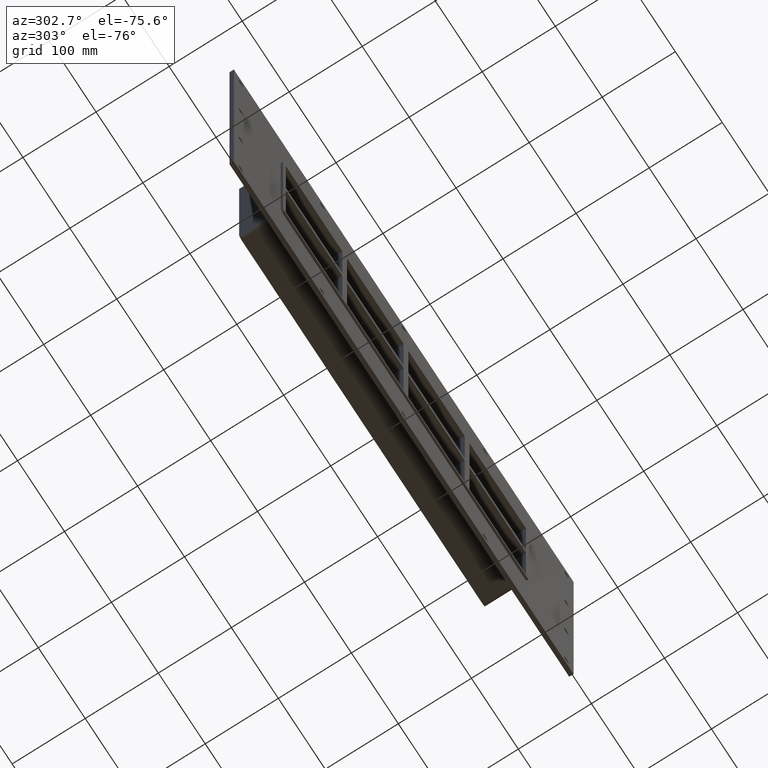
[diagram: clean part render]
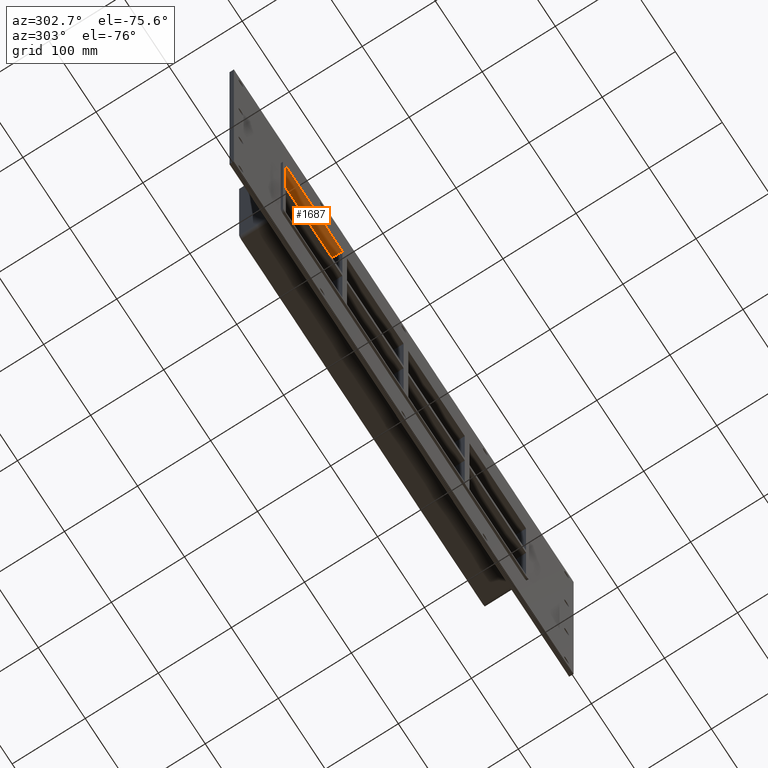
[diagram: same view with one face highlighted and labeled with its STEP entity id]
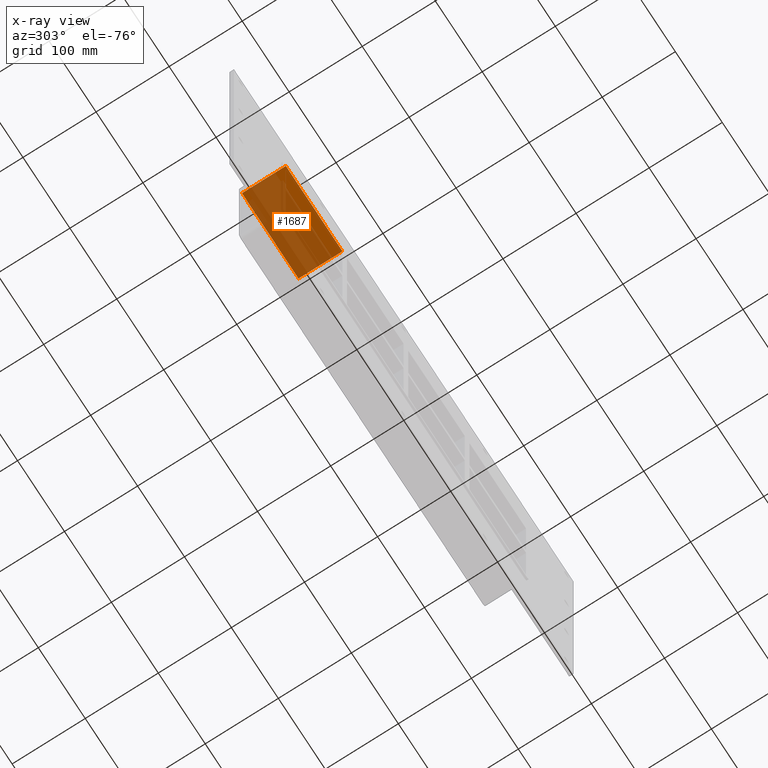
[diagram: x-ray of the same camera — body ghosted, the highlighted face saturated]
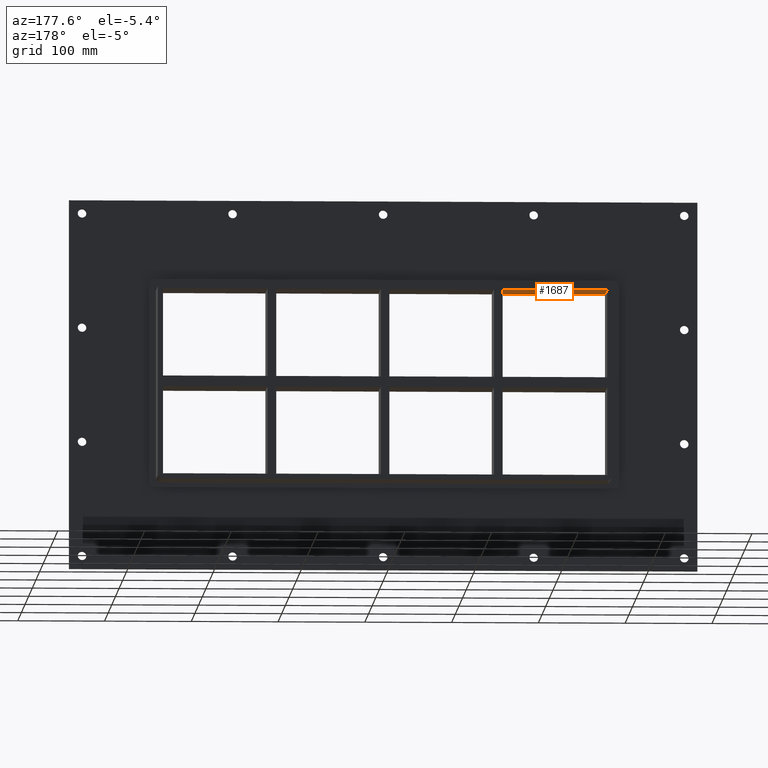
[diagram: same view with one face highlighted and labeled with its STEP entity id]
A machine part, auxiliary view. The second image highlights one B-rep face of the part: STEP entity #1687.
The next image is the same camera in x-ray: the body ghosted, the highlighted face saturated — about 76% of this face is hidden behind the body in this view.
A second angle (auxiliary view) of the same face is appended — the face is thin or edge-on in the first view.
In plain terms, the highlighted planar face has unit normal (0, 0, 1).
Its self-contained STEP definition (entity closure, byte-faithful):
#1054=CARTESIAN_POINT('',(-256.00000000000006,-3.0,107.0));
#1055=VERTEX_POINT('',#1054);
#1062=CARTESIAN_POINT('',(-135.50000000000142,-3.0,107.0));
#1063=VERTEX_POINT('',#1062);
#1064=CARTESIAN_POINT('',(-256.00000000000006,-3.0,107.0));
#1065=DIRECTION('',(1.0,0.0,0.0));
#1066=VECTOR('',#1065,120.49999999999864);
#1067=LINE('',#1064,#1066);
#1068=EDGE_CURVE('',#1055,#1063,#1067,.T.);
#1328=CARTESIAN_POINT('',(-135.50000000000142,57.0,107.0));
#1329=VERTEX_POINT('',#1328);
#1336=CARTESIAN_POINT('',(-256.00000000000006,57.0,107.0));
#1337=VERTEX_POINT('',#1336);
#1338=CARTESIAN_POINT('',(-135.50000000000142,57.0,107.0));
#1339=DIRECTION('',(-1.0,0.0,0.0));
#1340=VECTOR('',#1339,120.49999999999864);
#1341=LINE('',#1338,#1340);
#1342=EDGE_CURVE('',#1329,#1337,#1341,.T.);
#1567=CARTESIAN_POINT('',(-256.0,-3.0,107.0));
#1568=DIRECTION('',(0.0,1.0,0.0));
#1569=VECTOR('',#1568,60.0);
#1570=LINE('',#1567,#1569);
#1571=EDGE_CURVE('',#1055,#1337,#1570,.T.);
#1608=CARTESIAN_POINT('',(-135.50000000000142,57.000000000000007,107.0));
#1609=DIRECTION('',(0.0,-1.0,0.0));
#1610=VECTOR('',#1609,60.000000000000007);
#1611=LINE('',#1608,#1610);
#1612=EDGE_CURVE('',#1329,#1063,#1611,.T.);
#1676=CARTESIAN_POINT('',(-256.0,0.0,107.0));
#1677=DIRECTION('',(0.0,0.0,1.0));
#1678=DIRECTION('',(1.0,0.0,0.0));
#1679=AXIS2_PLACEMENT_3D('',#1676,#1677,#1678);
#1680=PLANE('',#1679);
#1681=ORIENTED_EDGE('',*,*,#1612,.T.);
#1682=ORIENTED_EDGE('',*,*,#1068,.F.);
#1683=ORIENTED_EDGE('',*,*,#1571,.T.);
#1684=ORIENTED_EDGE('',*,*,#1342,.F.);
#1685=EDGE_LOOP('',(#1681,#1682,#1683,#1684));
#1686=FACE_OUTER_BOUND('',#1685,.T.);
#1687=ADVANCED_FACE('',(#1686),#1680,.F.);